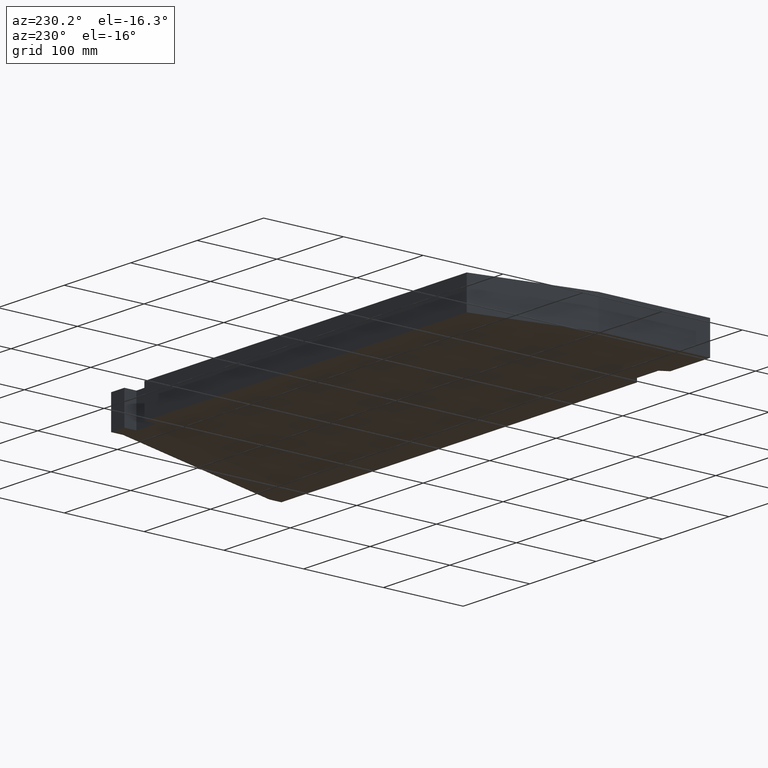
[diagram: clean part render]
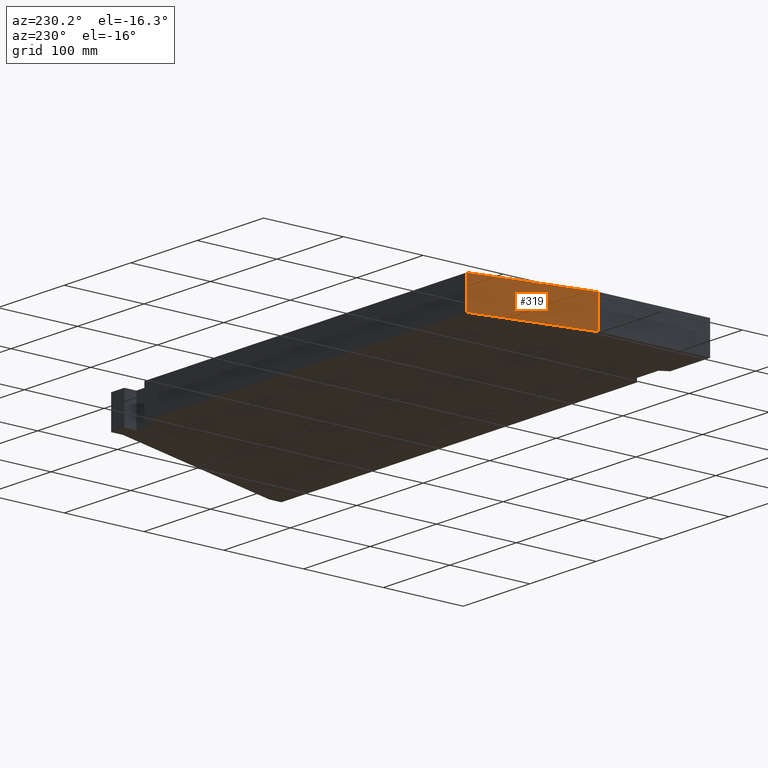
[diagram: same view with one face highlighted and labeled with its STEP entity id]
A machine part, auxiliary view. The second image highlights one B-rep face of the part: STEP entity #319.
In plain terms, the highlighted planar face has unit normal (-0.9778, 0.2095, 0).
Its self-contained STEP definition (entity closure, byte-faithful):
#13=FACE_OUTER_BOUND($,#30,.T.);
#30=EDGE_LOOP($,(#212,#213,#214,#215));
#47=LINE($,#441,#92);
#48=LINE($,#443,#93);
#49=LINE($,#445,#94);
#50=LINE($,#446,#95);
#92=VECTOR($,#360,143.178210632764);
#93=VECTOR($,#361,40.);
#94=VECTOR($,#362,143.178210632764);
#95=VECTOR($,#363,40.);
#137=VERTEX_POINT($,#439);
#138=VERTEX_POINT($,#440);
#139=VERTEX_POINT($,#442);
#140=VERTEX_POINT($,#444);
#167=EDGE_CURVE($,#137,#138,#47,.T.);
#168=EDGE_CURVE($,#137,#139,#48,.T.);
#169=EDGE_CURVE($,#140,#139,#49,.T.);
#170=EDGE_CURVE($,#138,#140,#50,.T.);
#212=ORIENTED_EDGE($,*,*,#167,.F.);
#213=ORIENTED_EDGE($,*,*,#168,.T.);
#214=ORIENTED_EDGE($,*,*,#169,.F.);
#215=ORIENTED_EDGE($,*,*,#170,.F.);
#302=PLANE($,#339);
#319=ADVANCED_FACE($,(#13),#302,.T.);
#339=AXIS2_PLACEMENT_3D($,#438,#358,#359);
#358=DIRECTION('center_axis',(-0.97780241407741,0.209529088730874,0.));
#359=DIRECTION('ref_axis',(-0.209529088730875,-0.977802414077409,0.));
#360=DIRECTION($,(0.209529088730874,0.97780241407741,0.));
#361=DIRECTION($,(0.,0.,1.));
#362=DIRECTION($,(-0.209529088730874,-0.97780241407741,0.));
#363=DIRECTION($,(0.,0.,1.));
#438=CARTESIAN_POINT('Origin',(-149.031144331396,119.653979238754,0.));
#439=CARTESIAN_POINT('',(-179.031144331396,-20.3460207612457,0.));
#440=CARTESIAN_POINT('',(-149.031144331396,119.653979238754,0.));
#441=CARTESIAN_POINT($,(-179.031144331396,-20.3460207612457,0.));
#442=CARTESIAN_POINT('',(-179.031144331396,-20.3460207612457,40.));
#443=CARTESIAN_POINT($,(-179.031144331396,-20.3460207612457,0.));
#444=CARTESIAN_POINT('',(-149.031144331396,119.653979238754,40.));
#445=CARTESIAN_POINT($,(-179.031144331396,-20.3460207612457,40.));
#446=CARTESIAN_POINT($,(-149.031144331396,119.653979238754,0.));